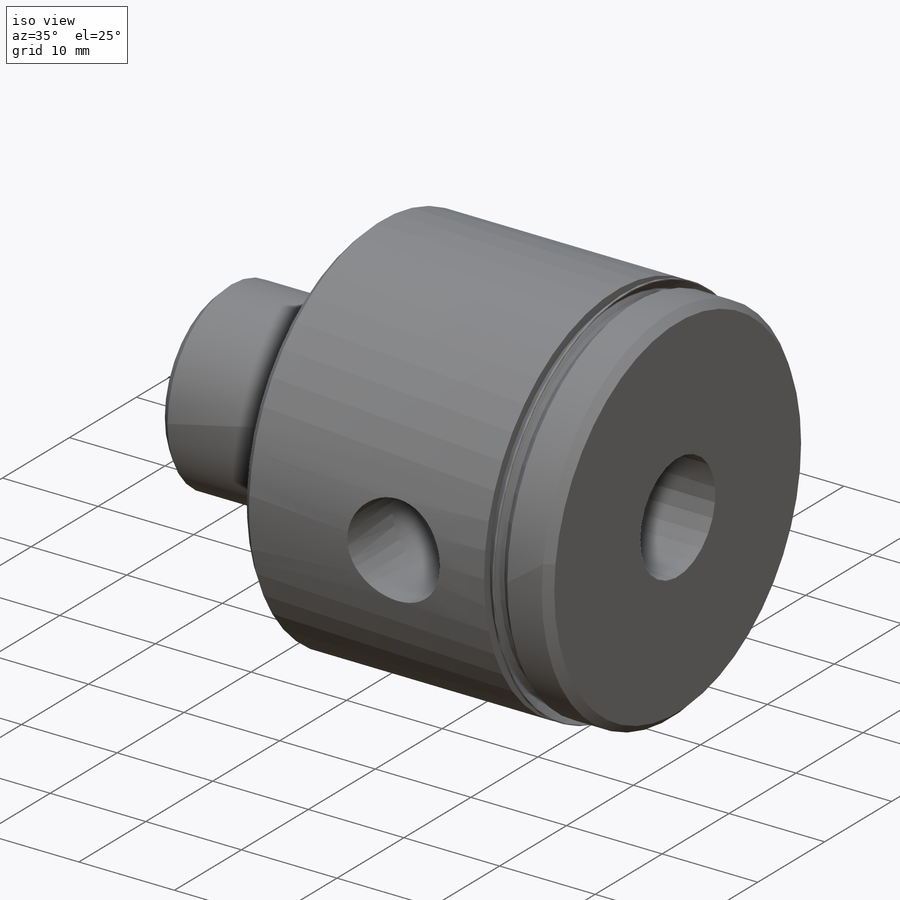
[diagram: iso view]
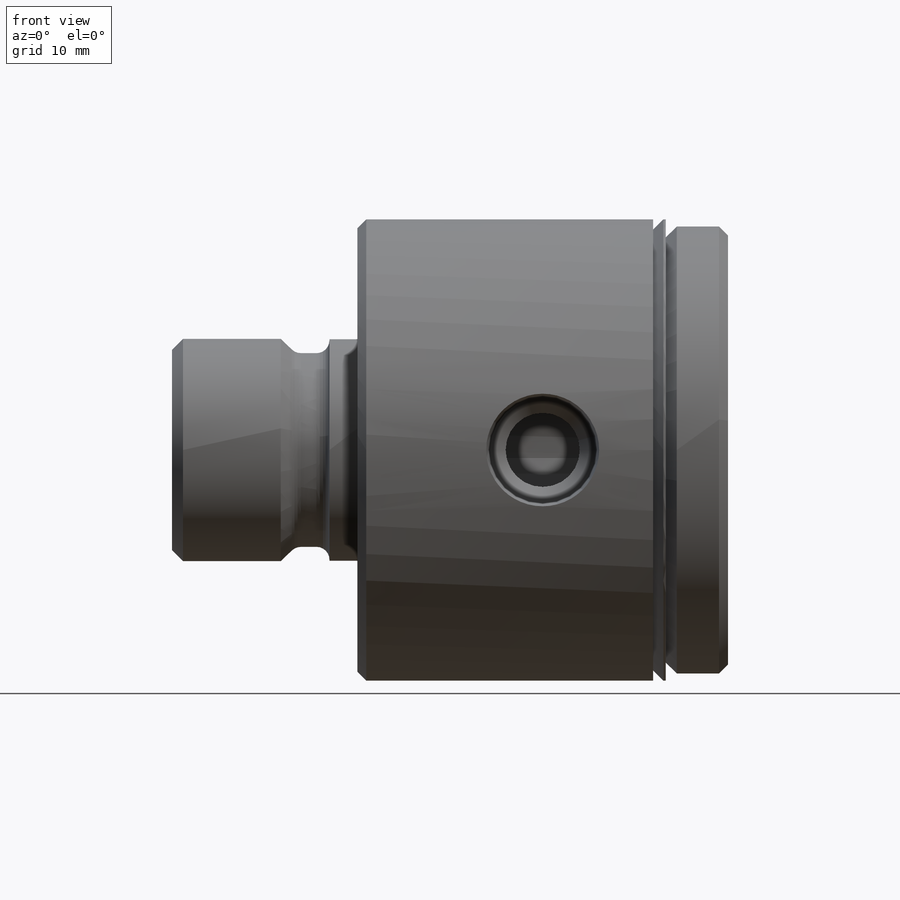
[diagram: front view]
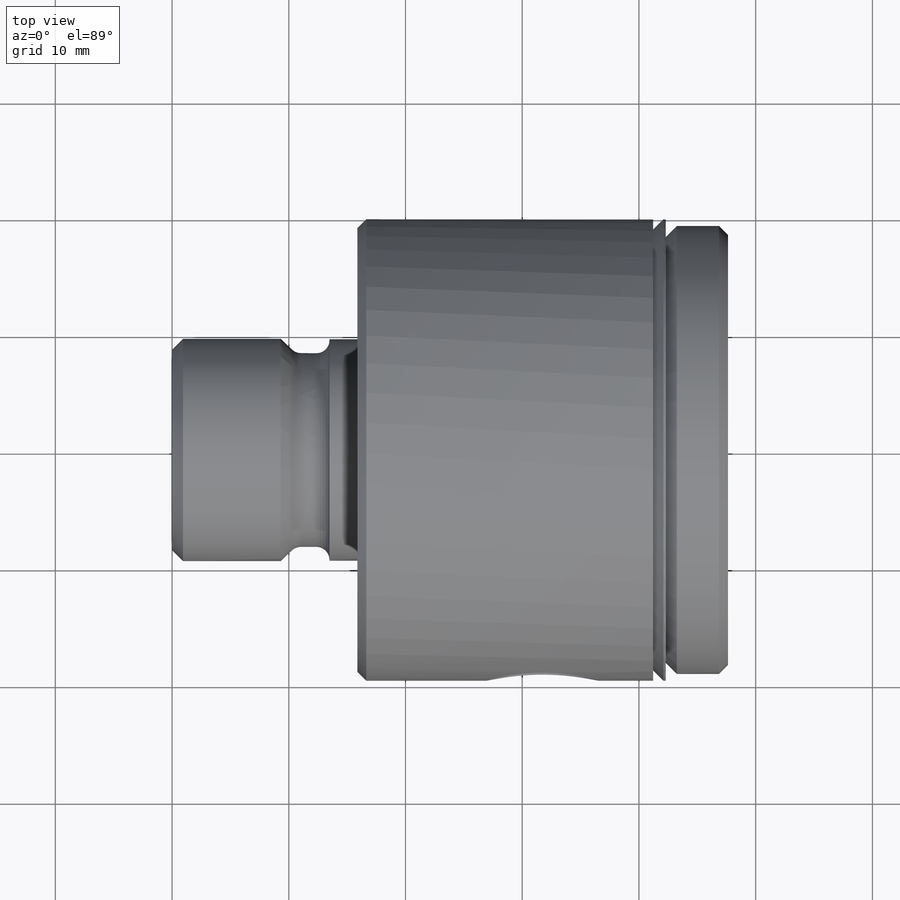
[diagram: top view]
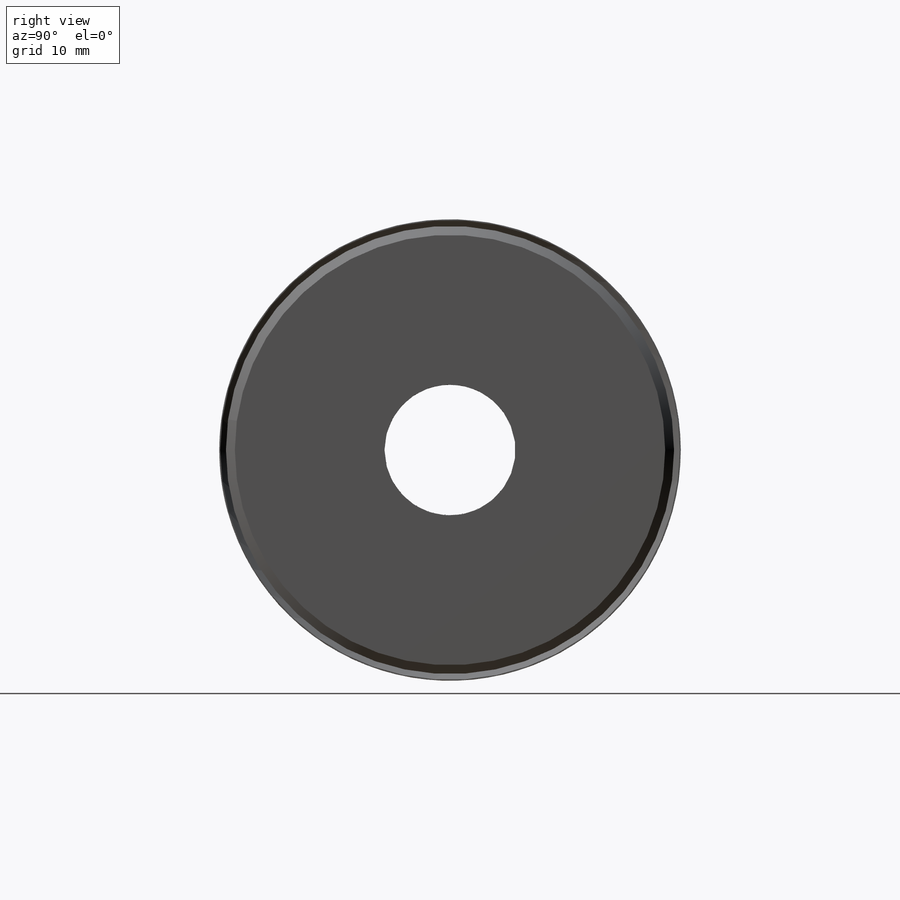
[diagram: right view]
SOLIDWORKS PART (.sldprt)
format: sldprt  version: not decoded by parser v0  size: 466,432 bytes
history: native  units: mm
features: plane x66, sketch x22, revolve x3, thread x2, cut_revolve x2, material x1, hole x1 (+61 scaffold rows collapsed)
feature tree (158):
  scaffold x61  (default folders/planes/origin — collapsed)
  material  "Plain Carbon Steel"
  sketch  "Sketch1"
  revolve  "Revolve1"  [1 undecoded]
  thread  "Cosmetic Thread1"  Diameter=10.246037mm  [1 undecoded]
  sketch  "Sketch2"
  revolve  "Revolve2"  Angle=360deg
  hole  "Hole1"  Diameter=11.2268mm Depth=47.625mm
  sketch  "Sketch4"
  sketch  "Sketch3"  dims[Diameter=11.2268mm Depth=47.625mm C-Sink Angle=90.0deg C-Sink Diameter=12.7508mm]
  plane  "Plane1"  Offset=25.527mm
  plane  "Plane2"  Offset=0mm
  plane  "Plane3"
  plane  "Plane4"  Offset=3.1242mm
  plane  "Plane5"  Offset=41.275mm
  plane  "Plane6"  Offset=15.875mm
  plane  "Plane7"  Offset=41.275mm
  sketch  "Sketch5"
  cut_revolve  "Cut-Revolve1"  [1 undecoded]
  thread  "Cosmetic Thread2"  Diameter=6.4008mm  [1 undecoded]
  sketch  "Sketch6"
  revolve  "Revolve3"  Angle=360deg
  plane  "Plane8"  Offset=42.2275mm
  plane  "Plane9"  Offset=15.875mm
  plane  "Plane10"  Offset=13.4874mm
  plane  "Plane11"  Offset=22.225mm
  plane  "Plane12"  Offset=44.45mm
  plane  "Plane13"  Offset=0mm
  plane  "Plane14"  Offset=0mm
  plane  "Plane15"
  plane  "Plane16"
  plane  "Plane17"  Offset=14.2875mm
  plane  "Plane18"  Offset=0mm
  cut_revolve  "Folder1___EndTag___"  [1 undecoded]
  plane  "dp1 XY"
  plane  "dp1 XZ"
  plane  "dp1 YZ"
  sketch  "dp1"
  plane  "dp2 XY"
  plane  "dp2 XZ"
  plane  "dp2 YZ"
  sketch  "dp2"
  plane  "port XY"
  plane  "port XZ"
  plane  "port YZ"
  sketch  "port"
  plane  "rod_guide XY"
  plane  "rod_guide XZ"
  plane  "rod_guide YZ"
  sketch  "rod_guide"
  plane  "s1 XY"
  plane  "s1 XZ"
  plane  "s1 YZ"
  sketch  "s1"
  plane  "s2 XY"
  plane  "s2 XZ"
  plane  "s2 YZ"
  sketch  "s2"
  plane  "t1 XY"
  plane  "t1 XZ"
  plane  "t1 YZ"
  sketch  "t1"
  plane  "t111 XY"
  plane  "t111 XZ"
  plane  "t111 YZ"
  sketch  "t111"
  plane  "to_foot_bracket XY"
  plane  "to_foot_bracket XZ"
  plane  "to_foot_bracket YZ"
  sketch  "to_foot_bracket"
  plane  "to_nut XY"
  plane  "to_nut XZ"
  plane  "to_nut YZ"
  sketch  "to_nut"
  plane  "to_rod XY"
  plane  "to_rod XZ"
  plane  "to_rod YZ"
  sketch  "to_rod"
  plane  "to_screw XY"
  plane  "to_screw XZ"
  plane  "to_screw YZ"
  sketch  "to_screw"
  plane  "to_trunnion_brackets XY"
  plane  "to_trunnion_brackets XZ"
  plane  "to_trunnion_brackets YZ"
  sketch  "to_trunnion_brackets"
  plane  "to_trunnion_brackets1 XY"
  plane  "to_trunnion_brackets1 XZ"
  plane  "to_trunnion_brackets1 YZ"
  sketch  "to_trunnion_brackets1"
  plane  "to_trunnion_brackets2 XY"
  plane  "to_trunnion_brackets2 XZ"
  plane  "to_trunnion_brackets2 YZ"
  sketch  "to_trunnion_brackets2"
  plane  "to_tube XY"
  plane  "to_tube XZ"
  plane  "to_tube YZ"
  sketch  "to_tube"
decode coverage: 6 of 30 modeling features carry decoded parameters
note: 5 parameter values undecoded
summary: no parameter record found for 3 features
note: suppression state not decoded; provenance and decode notes live in map.json
